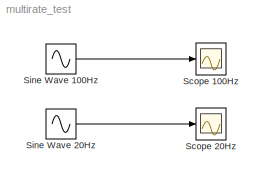
MODEL multirate_test
KIND model
BLOCK [Scope] Scope 100Hz
  Floating = off
  NumInputPorts = 1
  Ports = [1]
  SID = 4
  ScopeSpecificationString = Simulink.scopes.TimeScopeBlockCfg('CurrentConfiguration', extmgr.ConfigurationSet(extmgr.Configuration('Core','General UI',true),extmgr.Configuration('Core','Source UI',true),extmgr.Configuration('Sources','WiredSimulink',true,'DataLoggingSaveFormat','StructureWithTime','DataLoggingLimitDataPoints',true,'DataLoggingDecimation','1','DataLoggingDecimateData',true),extmgr.Configuration('Visuals','Tim...<+1633ch>
BLOCK [Scope] Scope 20Hz
  Floating = off
  NumInputPorts = 1
  Ports = [1]
  SID = 5
  ScopeSpecificationString = Simulink.scopes.TimeScopeBlockCfg('CurrentConfiguration', extmgr.ConfigurationSet(extmgr.Configuration('Core','General UI',true),extmgr.Configuration('Core','Source UI',true),extmgr.Configuration('Sources','WiredSimulink',true,'DataLoggingVariableName','ScopeData1','DataLoggingSaveFormat','StructureWithTime','DataLoggingLimitDataPoints',true,'DataLoggingDecimation','1','DataLoggingDecimateData',tr...<+1672ch>
BLOCK [Sin] Sine Wave 100Hz
  Ports = [0, 1]
  SID = 1
  SampleTime = 0.01
BLOCK [Sin] Sine Wave 20Hz
  Ports = [0, 1]
  SID = 2
  SampleTime = 0.05
LINE Sine Wave 100Hz:1 -> Scope 100Hz:1
LINE Sine Wave 20Hz:1 -> Scope 20Hz:1
